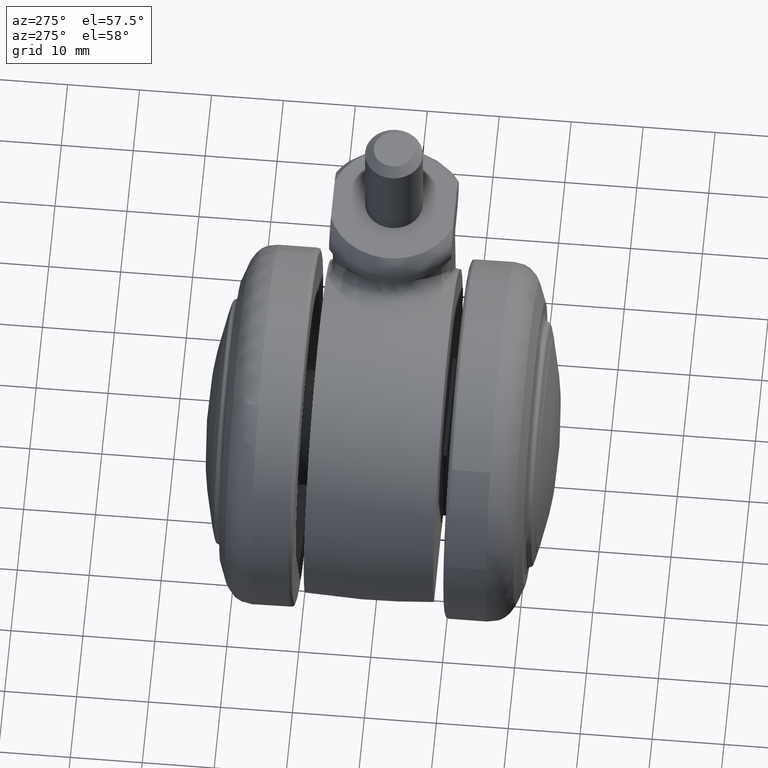
[diagram: clean part render]
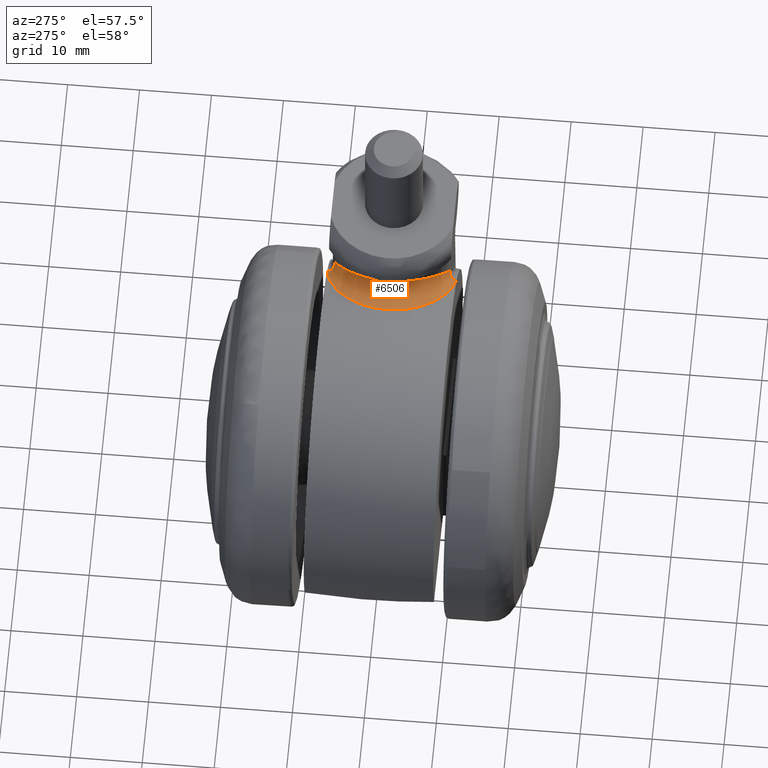
[diagram: same view with one face highlighted and labeled with its STEP entity id]
A machine part, auxiliary view. The second image highlights one B-rep face of the part: STEP entity #6506.
In plain terms, the highlighted face is a freeform B-spline surface patch.
Its self-contained STEP definition (entity closure, byte-faithful):
#5639=CARTESIAN_POINT('',(9.070010925223931,-2.937707243113865,25.444837357169000));
#5640=VERTEX_POINT('',#5639);
#5641=CARTESIAN_POINT('',(9.075658105813609,2.952950023515245,25.444858591452249));
#5642=VERTEX_POINT('',#5641);
#5643=CARTESIAN_POINT('',(9.070010925223931,-2.937707243113865,25.444837357169000));
#5644=CARTESIAN_POINT('',(9.067297548933691,-2.930449182351408,25.445429692877472));
#5645=CARTESIAN_POINT('',(9.064504033050955,-2.922949183552518,25.446039118170692));
#5646=CARTESIAN_POINT('',(9.059025846423911,-2.908184597438322,25.447233453560582));
#5647=CARTESIAN_POINT('',(9.050837648693575,-2.886032117210825,25.449017460717300));
#5648=CARTESIAN_POINT('',(9.031936200136537,-2.834303649934511,25.453127711110639));
#5649=CARTESIAN_POINT('',(9.016086367146862,-2.789897343607232,25.456561751025330));
#5650=CARTESIAN_POINT('',(8.984864400724291,-2.700993148619732,25.463317671507220));
#5651=CARTESIAN_POINT('',(8.924329952084374,-2.522817646857540,25.476354152668151));
#5652=CARTESIAN_POINT('',(8.869572298498133,-2.343532736899594,25.487984436575260));
#5653=CARTESIAN_POINT('',(8.767897337382603,-1.983460324568341,25.509417811407140));
#5654=CARTESIAN_POINT('',(8.710559200139446,-1.741410330813788,25.521274696600489));
#5655=CARTESIAN_POINT('',(8.571209447957161,-1.009022492206524,25.549815175780878));
#5656=CARTESIAN_POINT('',(8.521608021952494,-0.512497156777190,25.559569652385811));
#5657=CARTESIAN_POINT('',(8.520979438003229,0.119831154463473,25.559823524278169));
#5658=CARTESIAN_POINT('',(8.523975040243922,0.246594953768016,25.559264908260609));
#5659=CARTESIAN_POINT('',(8.536075199005417,0.499177032019263,25.556938341236979));
#5660=CARTESIAN_POINT('',(8.545174779480085,0.625223957985397,25.555171129674221));
#5661=CARTESIAN_POINT('',(8.581427929888342,1.002647347200322,25.548057297899739));
#5662=CARTESIAN_POINT('',(8.617673046854284,1.253855060551153,25.540874219380221));
#5663=CARTESIAN_POINT('',(8.712178070219020,1.749217437486715,25.521757794039370));
#5664=CARTESIAN_POINT('',(8.770440497592702,1.993905740233352,25.509823563102760));
#5665=CARTESIAN_POINT('',(8.873392724394435,2.356692301354662,25.488261074850289));
#5666=CARTESIAN_POINT('',(8.928763988691641,2.537022563928078,25.476562467512530));
#5667=CARTESIAN_POINT('',(8.989838958976588,2.715792648289672,25.463454575960132));
#5668=CARTESIAN_POINT('',(9.021316976717385,2.804920103934439,25.456662444741522));
#5669=CARTESIAN_POINT('',(9.031966006907902,2.834586402909745,25.454358238813079));
#5670=CARTESIAN_POINT('',(9.048175369273997,2.879021111358290,25.450839342742629));
#5671=CARTESIAN_POINT('',(9.056338854987796,2.901222383106519,25.449065416157978));
#5672=CARTESIAN_POINT('',(9.064589726722046,2.923399741866393,25.447269721221868));
#5673=CARTESIAN_POINT('',(9.070109635868930,2.938179357097033,25.446067748109879));
#5674=CARTESIAN_POINT('',(9.072928831967541,2.945698176374100,25.445453538185649));
#5675=CARTESIAN_POINT('',(9.075658105813609,2.952950023515245,25.444858591452249));
#5676=B_SPLINE_CURVE_WITH_KNOTS('',3,(#5643,#5644,#5645,#5646,#5647,#5648,#5649,#5650,#5651,#5652,#5653,#5654,#5655,#5656,#5657,#5658,#5659,#5660,#5661,#5662,#5663,#5664,#5665,#5666,#5667,#5668,#5669,#5670,#5671,#5672,#5673,#5674,#5675),.UNSPECIFIED.,.F.,.U.,(4,2,1,1,2,1,2,2,2,2,2,2,2,1,2,2,1,2,4),(0.0,0.003906250000000,0.007812500000000,0.015625000000000,0.031250000000000,0.062500000000000,0.125000000000001,0.250000000000001,0.500000000000001,0.562500000000001,0.625000000000001,0.750000000000000,0.875000000000000,0.937500000000000,0.968750000000000,0.984375000000000,0.992187500000000,0.996093750000000,1.0),.UNSPECIFIED.);
#5677=EDGE_CURVE('',#5640,#5642,#5676,.T.);
#6242=CARTESIAN_POINT('',(13.588231695146179,9.0,19.173156694149551));
#6243=VERTEX_POINT('',#6242);
#6244=CARTESIAN_POINT('',(14.601306427490020,8.036616070161891,20.108176495131101));
#6245=VERTEX_POINT('',#6244);
#6246=CARTESIAN_POINT('',(13.588231695146179,9.0,19.173156694149551));
#6247=CARTESIAN_POINT('',(13.946882302687898,7.793973775751146,19.051527706790850));
#6248=CARTESIAN_POINT('',(14.601306427490025,8.036616070161891,20.108176495131101));
#6256=(BOUNDED_CURVE()B_SPLINE_CURVE(2,(#6246,#6247,#6248),.UNSPECIFIED.,.F.,.U.)B_SPLINE_CURVE_WITH_KNOTS((3,3),(0.000114349194304,1.0),.UNSPECIFIED.)CURVE()GEOMETRIC_REPRESENTATION_ITEM()RATIONAL_B_SPLINE_CURVE((1.0,0.664219586636897,0.999923207560538))REPRESENTATION_ITEM(''));
#6257=EDGE_CURVE('',#6243,#6245,#6256,.T.);
#6280=CARTESIAN_POINT('',(14.680028032690776,8.063598966959177,20.025377643364266));
#6281=CARTESIAN_POINT('',(14.677868780852235,8.062818146361503,20.021932695719403));
#6282=CARTESIAN_POINT('',(14.029270484031048,7.828274448987082,18.987135765031436));
#6283=CARTESIAN_POINT('',(13.683826084633292,9.014816913660511,19.104037564570586));
#6284=CARTESIAN_POINT('',(13.682503297252412,9.019360462208105,19.104485208896286));
#6285=CARTESIAN_POINT('',(14.655379372115254,8.055650850416257,20.055205629722106));
#6286=CARTESIAN_POINT('',(14.653213269380203,8.054859758189048,20.051734996706415));
#6287=CARTESIAN_POINT('',(14.002052454169764,7.817046356618440,19.008414111126854));
#6288=CARTESIAN_POINT('',(13.651761803048112,9.011449033691454,19.127118980215368));
#6289=CARTESIAN_POINT('',(13.650421498799867,9.016019132770840,19.127573176294607));
#6290=CARTESIAN_POINT('',(14.630730965496191,8.047702815763200,20.085033308760661));
#6291=CARTESIAN_POINT('',(14.628557885136097,8.046901411083649,20.081537143906939));
#6292=CARTESIAN_POINT('',(13.974792452841635,7.805800950009608,19.029725269420751));
#6293=CARTESIAN_POINT('',(13.619697711971655,9.008081173732530,19.150200258722787));
#6294=CARTESIAN_POINT('',(13.618340080833375,9.012677842961312,19.150660869872528));
#6295=CARTESIAN_POINT('',(14.417591274175701,7.978974573863529,20.342959202362401));
#6296=CARTESIAN_POINT('',(14.415352567911171,7.978082288153195,20.339248651663560));
#6297=CARTESIAN_POINT('',(13.737292774077680,7.707826616662380,19.215396325997883));
#6298=CARTESIAN_POINT('',(13.342427283749830,8.978958003804657,19.349792879651858));
#6299=CARTESIAN_POINT('',(13.340927740159765,8.983785260099257,19.350303264822230));
#6300=CARTESIAN_POINT('',(14.225688291941930,7.910708237341734,20.570284819743346));
#6301=CARTESIAN_POINT('',(14.223404689851082,7.909730396659645,20.566372997173769));
#6302=CARTESIAN_POINT('',(13.527664710083771,7.611813846706168,19.374566698550645));
#6303=CARTESIAN_POINT('',(13.091793452629874,8.944102072898904,19.524017899644893));
#6304=CARTESIAN_POINT('',(13.090147906890110,8.949131863639281,19.524582123100899));
#6305=CARTESIAN_POINT('',(13.437290460888697,7.601987774512635,21.482187330714929));
#6306=CARTESIAN_POINT('',(13.434847038620578,7.600628584288350,21.477468082738284));
#6307=CARTESIAN_POINT('',(12.672676547613165,7.176659835974895,20.005405069121974));
#6308=CARTESIAN_POINT('',(12.058962461837913,8.760866906516249,20.216653285145163));
#6309=CARTESIAN_POINT('',(12.056699481739891,8.766708436236437,20.217432231758373));
#6310=CARTESIAN_POINT('',(12.810544767496655,7.287041133277345,22.154330967727784));
#6311=CARTESIAN_POINT('',(12.808175903682642,7.285404071109584,22.148889025875832));
#6312=CARTESIAN_POINT('',(12.056877343646875,6.766200543218318,20.422946380717971));
#6313=CARTESIAN_POINT('',(11.231126659848741,8.517209788847277,20.713004049664885));
#6314=CARTESIAN_POINT('',(11.228132066877412,8.523559841087739,20.714055946652387));
#6315=CARTESIAN_POINT('',(11.566341508313485,6.430924848051950,23.386020935686279));
#6316=CARTESIAN_POINT('',(11.564439101928482,6.428915145080318,23.379164694399432));
#6317=CARTESIAN_POINT('',(10.944495986966558,5.774006956061404,21.144899915957975));
#6318=CARTESIAN_POINT('',(9.575655776773088,7.709183547769283,21.600345020657823));
#6319=CARTESIAN_POINT('',(9.570824582763793,7.716013573280785,21.601952471728442));
#6320=CARTESIAN_POINT('',(10.935002134844078,5.874033208256386,23.953175615613347));
#6321=CARTESIAN_POINT('',(10.933498172138870,5.871934575780839,23.945618612847454));
#6322=CARTESIAN_POINT('',(10.438236876603538,5.180846003508885,21.457065560807528));
#6323=CARTESIAN_POINT('',(8.732232294878635,7.125066881931320,21.998443808520932));
#6324=CARTESIAN_POINT('',(8.726273904529794,7.131857266342995,22.000334625791169));
#6325=CARTESIAN_POINT('',(9.839504361012590,4.531512198408091,24.879575456192764));
#6326=CARTESIAN_POINT('',(9.838842314605587,4.529580976339891,24.870849917106266));
#6327=CARTESIAN_POINT('',(9.618060390477242,3.885549199072293,21.961021711422422));
#6328=CARTESIAN_POINT('',(7.253301364452385,5.605730803865386,22.631108614492330));
#6329=CARTESIAN_POINT('',(7.245145821022228,5.611663338906477,22.633419599577827));
#6330=CARTESIAN_POINT('',(9.359751156920208,3.723227375148307,25.249327723194227));
#6331=CARTESIAN_POINT('',(9.359536747152962,3.721553359913886,25.240120851479130));
#6332=CARTESIAN_POINT('',(9.287856530548016,3.161906399134167,22.162133466597332));
#6333=CARTESIAN_POINT('',(6.600565872325369,4.641975549116271,22.875482321217536));
#6334=CARTESIAN_POINT('',(6.591321019170118,4.647067302741553,22.877936393459120));
#6335=CARTESIAN_POINT('',(8.703192482914517,1.956292942282423,25.744765017846344));
#6336=CARTESIAN_POINT('',(8.703599662469504,1.955347045047983,25.734912626010740));
#6337=CARTESIAN_POINT('',(8.839942951557379,1.638615179455863,22.435858211839239));
#6338=CARTESIAN_POINT('',(5.699066836616511,2.468808357252218,23.196174971688993));
#6339=CARTESIAN_POINT('',(5.688278797876213,2.471659840671572,23.198786448983864));
#6340=CARTESIAN_POINT('',(8.522845302655142,0.993053881906620,25.874891194410960));
#6341=CARTESIAN_POINT('',(8.523432954851534,0.992574008812513,25.864864611564716));
#6342=CARTESIAN_POINT('',(8.720104237743886,0.831973473968431,22.509238743935271));
#6343=CARTESIAN_POINT('',(5.447058447747945,1.254026934186820,23.276587512977191));
#6344=CARTESIAN_POINT('',(5.435810554329424,1.255477330130549,23.279224523799144));
#6345=CARTESIAN_POINT('',(8.517027301445904,-0.943436690632673,25.877544498474691));
#6346=CARTESIAN_POINT('',(8.517620477948380,-0.942980809798136,25.867516933955283));
#6347=CARTESIAN_POINT('',(8.716147420848767,-0.790404590020889,22.511447163009553));
#6348=CARTESIAN_POINT('',(5.440305138742426,-1.191370412563964,23.278953598305698));
#6349=CARTESIAN_POINT('',(5.429048022439698,-1.192748292971223,23.281591060204406));
#6350=CARTESIAN_POINT('',(8.690476647484417,-1.905962791970774,25.750637365025515));
#6351=CARTESIAN_POINT('',(8.690895981144001,-1.905040526733231,25.740782692848946));
#6352=CARTESIAN_POINT('',(8.831320822961835,-1.596195893974748,22.440688007032136));
#6353=CARTESIAN_POINT('',(5.684326597886566,-2.405499010865640,23.201414696172503));
#6354=CARTESIAN_POINT('',(5.673518452259835,-2.408278509434089,23.204027362180213));
#6355=CARTESIAN_POINT('',(9.341330330833300,-3.687638229488257,25.258544743002684));
#6356=CARTESIAN_POINT('',(9.341133179979687,-3.685978547273943,25.249333752403981));
#6357=CARTESIAN_POINT('',(9.275209633402083,-3.131011953137183,22.169351309319868));
#6358=CARTESIAN_POINT('',(6.579380295702473,-4.597710560040093,22.883748928572100));
#6359=CARTESIAN_POINT('',(6.570107930397946,-4.602755302704131,22.886206115162445));
#6360=CARTESIAN_POINT('',(9.811882396082224,-4.490968669417210,24.894392064924602));
#6361=CARTESIAN_POINT('',(9.811245175783897,-4.489050387864461,24.885659402406262));
#6362=CARTESIAN_POINT('',(9.598655480785585,-3.849072516332167,21.972264982649758));
#6363=CARTESIAN_POINT('',(7.221761610412400,-5.555785629452283,22.644460873129454));
#6364=CARTESIAN_POINT('',(7.213567569711894,-5.561669306837848,22.646778183361086));
#6365=CARTESIAN_POINT('',(10.917389932350632,-5.857926496064389,23.963833743989976));
#6366=CARTESIAN_POINT('',(10.915899773353912,-5.855829128274926,23.956271403419972));
#6367=CARTESIAN_POINT('',(10.424998008763215,-5.164895106394839,21.465016216272097));
#6368=CARTESIAN_POINT('',(8.712393975021056,-7.105689553894152,22.008142890129623));
#6369=CARTESIAN_POINT('',(8.706414804924108,-7.112465399271227,22.010039094216008));
#6370=CARTESIAN_POINT('',(11.536185654070950,-6.406722571930318,23.405425766336112));
#6371=CARTESIAN_POINT('',(11.534304102592204,-6.404712169829976,23.398560273381115));
#6372=CARTESIAN_POINT('',(10.920700361022256,-5.749088199526255,21.159614269255879));
#6373=CARTESIAN_POINT('',(9.541943320877266,-7.680299781315170,21.618114129304917));
#6374=CARTESIAN_POINT('',(9.537080751399882,-7.687110735108011,21.619731156351708));
#6375=CARTESIAN_POINT('',(12.794440439064154,-7.278673996450767,22.166129979787279));
#6376=CARTESIAN_POINT('',(12.792079307862052,-7.277033426990816,22.160683176385671));
#6377=CARTESIAN_POINT('',(12.042859073252421,-6.756457596820277,20.432335628911357));
#6378=CARTESIAN_POINT('',(11.213442238442903,-8.507547531822533,20.723959929350322));
#6379=CARTESIAN_POINT('',(11.210435853528086,-8.513894702683006,20.725016979148258));
#6380=CARTESIAN_POINT('',(13.412662858046151,-7.590449988504640,21.501025395429611));
#6381=CARTESIAN_POINT('',(13.410229538575665,-7.589085282150946,21.496299042081180));
#6382=CARTESIAN_POINT('',(12.650604729109704,-7.163056223296279,20.020843268466280));
#6383=CARTESIAN_POINT('',(12.032097772769777,-8.747617419195242,20.234251849646348));
#6384=CARTESIAN_POINT('',(12.029818939819869,-8.753455591631841,20.235038134265455));
#6385=CARTESIAN_POINT('',(14.221787653588311,-7.909570276850053,20.568378194527131));
#6386=CARTESIAN_POINT('',(14.219512572857591,-7.908595336679550,20.564477580844553));
#6387=CARTESIAN_POINT('',(13.526223765040006,-7.611500337203744,19.375837646781751));
#6388=CARTESIAN_POINT('',(13.091061955162640,-8.939649289124024,19.525413243241626));
#6389=CARTESIAN_POINT('',(13.089419431772875,-8.944662403025779,19.525977818096631));
#6390=CARTESIAN_POINT('',(14.429163857861360,-7.983364533658984,20.322988002295538));
#6391=CARTESIAN_POINT('',(14.426937191349280,-7.982481482690713,20.319304128943237));
#6392=CARTESIAN_POINT('',(13.752707212886772,-7.715095490182467,19.203834956749922));
#6393=CARTESIAN_POINT('',(13.361691438372903,-8.977435935202260,19.337180488013693));
#6394=CARTESIAN_POINT('',(13.360206110577222,-8.982231110928648,19.337687019557730));
#6395=CARTESIAN_POINT('',(14.657110363479720,-8.056324682591688,20.046919230680160));
#6396=CARTESIAN_POINT('',(14.654955031098359,-8.055537947976598,20.043463292038009));
#6397=CARTESIAN_POINT('',(14.007021994157640,-7.819030877033685,19.004543801353048));
#6398=CARTESIAN_POINT('',(13.657954291375985,-9.007913987653701,19.123249978138805));
#6399=CARTESIAN_POINT('',(13.656618686962338,-9.012462897556260,19.123704172246075));
#6400=CARTESIAN_POINT('',(14.681945392847501,-8.064273773263235,20.016841226053629));
#6401=CARTESIAN_POINT('',(14.679797175018313,-8.063497321799769,20.013410916412774));
#6402=CARTESIAN_POINT('',(14.034508903841836,-7.830264445830179,18.983003968072897));
#6403=CARTESIAN_POINT('',(13.690231739604576,-9.011234531387546,19.099942530421320));
#6404=CARTESIAN_POINT('',(13.688913430800342,-9.015756711256101,19.100390312476897));
#6405=CARTESIAN_POINT('',(14.706780680915783,-8.072222946738535,19.986762908111782));
#6406=CARTESIAN_POINT('',(14.704639448542959,-8.071456737148029,19.983358384000343));
#6407=CARTESIAN_POINT('',(14.061953059285326,-7.841480541483646,18.961497638712508));
#6408=CARTESIAN_POINT('',(13.722509381723611,-9.014555095067875,19.076634942696131));
#6409=CARTESIAN_POINT('',(13.721208561877807,-9.019050564451371,19.077076173156179));
#6417=(BOUNDED_SURFACE()B_SPLINE_SURFACE(2,3,((#6280,#6285,#6290,#6295,#6300,#6305,#6310,#6315,#6320,#6325,#6330,#6335,#6340,#6345,#6350,#6355,#6360,#6365,#6370,#6375,#6380,#6385,#6390,#6395,#6400,#6405),(#6281,#6286,#6291,#6296,#6301,#6306,#6311,#6316,#6321,#6326,#6331,#6336,#6341,#6346,#6351,#6356,#6361,#6366,#6371,#6376,#6381,#6386,#6391,#6396,#6401,#6406),(#6282,#6287,#6292,#6297,#6302,#6307,#6312,#6317,#6322,#6327,#6332,#6337,#6342,#6347,#6352,#6357,#6362,#6367,#6372,#6377,#6382,#6387,#6392,#6397,#6402,#6407),(#6283,#6288,#6293,#6298,#6303,#6308,#6313,#6318,#6323,#6328,#6333,#6338,#6343,#6348,#6353,#6358,#6363,#6368,#6373,#6378,#6383,#6388,#6393,#6398,#6403,#6408),(#6284,#6289,#6294,#6299,#6304,#6309,#6314,#6319,#6324,#6329,#6334,#6339,#6344,#6349,#6354,#6359,#6364,#6369,#6374,#6379,#6384,#6389,#6394,#6399,#6404,#6409)),.UNSPECIFIED.,.F.,.F.,.U.)B_SPLINE_SURFACE_WITH_KNOTS((3,1,1,3),(4,2,2,2,2,2,2,2,2,2,2,2,4),(0.0,0.025173195475731,5.016950569456829,5.045942322670777),(0.0,0.157525079804145,1.362218502907139,5.015385653352269,8.668552803797326,12.321719954242459,15.974887104687500,19.628054255132710,23.281221405577771,26.934388556022821,30.587555706468031,31.885049950973709,32.043688897244600),.UNSPECIFIED.)GEOMETRIC_REPRESENTATION_ITEM()RATIONAL_B_SPLINE_SURFACE(((1.003371516260735,1.003376685208590,1.003381854156444,1.003426553301599,1.003465369518375,1.003618465722186,1.003724407124231,1.003893539920967,1.003957668067945,1.004034017426322,1.004048953917911,1.004058522667992,1.004055387262838,1.004055593321091,1.004059025028632,1.004050158100350,1.004036475918106,1.003959977027958,1.003898120381590,1.003727563663401,1.003623589270523,1.003466745221340,1.003424755658201,1.003376787460074,1.003371561547737,1.003366335635400),(1.001685758130368,1.001688342604295,1.001690927078222,1.001713276650800,1.001732684759188,1.001809232861093,1.001862203562116,1.001946769960483,1.001978834033972,1.002017008713161,1.002024476958955,1.002029261333996,1.002027693631419,1.002027796660545,1.002029512514316,1.002025079050175,1.002018237959053,1.001979988513979,1.001949060190795,1.001863781831700,1.001811794635262,1.001733372610670,1.001712377829101,1.001688393730037,1.001685780773868,1.001683167817700),(0.665718668840175,0.665206174568812,0.664693680297449,0.660261819796555,0.656413243781724,0.641233959789725,0.630730011369514,0.613960720622238,0.607602500557754,0.600032563716972,0.598551630538836,0.597602901757103,0.597913772987519,0.597893342587208,0.597553093371060,0.598432237459360,0.599788807542344,0.607373570258388,0.613506574073328,0.630417044729624,0.640725966819808,0.656276844671464,0.660440053736809,0.665196036470831,0.665714178694486,0.666232320918142),(1.001941473172969,1.001944449689413,1.001947426205857,1.001973166016809,1.001995518168695,1.002083677960787,1.002144683862605,1.002242078257926,1.002279006176216,1.002322971626654,1.002331572741249,1.002337082864928,1.002335277355323,1.002335396013084,1.002337372147147,1.002332266164541,1.002324387338600,1.002280335780933,1.002244715896523,1.002146501542142,1.002086628334114,1.001996310361345,1.001972130851571,1.001944508570491,1.001941499251294,1.001938489932097),(1.003882946345937,1.003888899378825,1.003894852411714,1.003946332033618,1.003991036337391,1.004167355921575,1.004289367725209,1.004484156515852,1.004558012352433,1.004645943253309,1.004663145482499,1.004674165729856,1.004670554710647,1.004670792026168,1.004674744294295,1.004664532329081,1.004648774677200,1.004560671561867,1.004489431793046,1.004293003084284,1.004173256668229,1.003992620722690,1.003944261703143,1.003889017140982,1.003882998502589,1.003876979864195)))REPRESENTATION_ITEM('')SURFACE());
#6418=CARTESIAN_POINT('',(14.628022690233299,-8.045893878071739,20.069856902502650));
#6419=VERTEX_POINT('',#6418);
#6420=CARTESIAN_POINT('',(9.070010925223931,-2.937707243113865,25.444837357169000));
#6421=CARTESIAN_POINT('',(9.137854779852775,-3.113466288722163,25.393151683502101));
#6422=CARTESIAN_POINT('',(9.437314180805366,-3.816283612428233,25.163601675117089));
#6423=CARTESIAN_POINT('',(10.122052192541720,-4.949713833514489,24.624292707118361));
#6424=CARTESIAN_POINT('',(11.033351123513730,-5.947166269293470,23.841561182405378));
#6425=CARTESIAN_POINT('',(11.838983254773501,-6.620199027330384,23.089694607089051));
#6426=CARTESIAN_POINT('',(12.493416624146450,-7.073426694443958,22.443864617300481));
#6427=CARTESIAN_POINT('',(13.182630455993470,-7.464366147926037,21.723748380997179));
#6428=CARTESIAN_POINT('',(13.901891359862519,-7.797796438682016,20.931473576218949));
#6429=CARTESIAN_POINT('',(14.382302813897820,-7.961938717928929,20.361424465640361));
#6430=CARTESIAN_POINT('',(14.628022690233299,-8.045893878071739,20.069856902502650));
#6431=B_SPLINE_CURVE_WITH_KNOTS('',3,(#6420,#6421,#6422,#6423,#6424,#6425,#6426,#6427,#6428,#6429,#6430),.UNSPECIFIED.,.F.,.U.,(4,1,1,1,1,1,1,1,4),(0.619286242368023,0.642433091575388,0.713723201895343,0.787697378712744,0.826503465412993,0.866996355129486,0.909325565714501,0.953622024220544,1.0),.UNSPECIFIED.);
#6432=EDGE_CURVE('',#5640,#6419,#6431,.T.);
#6433=ORIENTED_EDGE('',*,*,#6432,.F.);
#6434=ORIENTED_EDGE('',*,*,#5677,.T.);
#6435=CARTESIAN_POINT('',(14.601306427490020,8.036616070161891,20.108176495131101));
#6436=CARTESIAN_POINT('',(14.473772636491390,7.994186218019736,20.260639257984590));
#6437=CARTESIAN_POINT('',(14.221798172967780,7.910355534906422,20.561867022271450));
#6438=CARTESIAN_POINT('',(13.843674151889340,7.761427312865465,20.996753627676430));
#6439=CARTESIAN_POINT('',(13.472379446720470,7.597355012658925,21.412018137519269));
#6440=CARTESIAN_POINT('',(13.108340904053840,7.416591011128974,21.806954662089080));
#6441=CARTESIAN_POINT('',(12.752471044244270,7.219709461237317,22.181803323151691));
#6442=CARTESIAN_POINT('',(12.405559289000109,7.006786097613256,22.536568680209971));
#6443=CARTESIAN_POINT('',(12.068435317601550,6.778085720653270,22.871284696655771));
#6444=CARTESIAN_POINT('',(11.741893920186330,6.533850725352803,23.186089265269722));
#6445=CARTESIAN_POINT('',(11.119426531318640,6.021434094338709,23.768108714070038));
#6446=CARTESIAN_POINT('',(10.249857235354810,5.123386544211281,24.525004583107901));
#6447=CARTESIAN_POINT('',(9.493084373967772,3.930535937429677,25.125540148609911));
#6448=CARTESIAN_POINT('',(9.159624696235994,3.169157468558015,25.381073451788680));
#6449=CARTESIAN_POINT('',(9.075658105813609,2.952950023515245,25.444858591452249));
#6450=B_SPLINE_CURVE_WITH_KNOTS('',3,(#6435,#6436,#6437,#6438,#6439,#6440,#6441,#6442,#6443,#6444,#6445,#6446,#6447,#6448,#6449),.UNSPECIFIED.,.F.,.U.,(4,1,1,1,1,1,1,1,1,1,1,1,4),(0.000000133971701,0.024151095842343,0.047716314890947,0.070709878821745,0.093147096353674,0.115044443081327,0.136419642999478,0.157291750319061,0.177681229735232,0.197610032813696,0.275454087761062,0.349838501214315,0.378333787725815),.UNSPECIFIED.);
#6451=EDGE_CURVE('',#6245,#5642,#6450,.T.);
#6452=ORIENTED_EDGE('',*,*,#6451,.F.);
#6453=ORIENTED_EDGE('',*,*,#6257,.F.);
#6454=CARTESIAN_POINT('',(13.626917438481060,-8.999999991011920,19.145929833168950));
#6455=VERTEX_POINT('',#6454);
#6456=CARTESIAN_POINT('',(13.626917438481060,-8.999999991011920,19.145929833168950));
#6457=CARTESIAN_POINT('',(13.485970573153541,-8.983746999216494,19.246689409881739));
#6458=CARTESIAN_POINT('',(13.207181752543651,-8.951599051807376,19.445988936633420));
#6459=CARTESIAN_POINT('',(12.788595045147259,-8.881347831777774,19.730417427909781));
#6460=CARTESIAN_POINT('',(12.376595833222650,-8.795469631230754,20.000481243639321));
#6461=CARTESIAN_POINT('',(11.971330356269910,-8.692439253105206,20.256010351060311));
#6462=CARTESIAN_POINT('',(11.573418144091050,-8.572641669069935,20.497800332550280));
#6463=CARTESIAN_POINT('',(11.183311035852711,-8.435965015010472,20.726378111491570));
#6464=CARTESIAN_POINT('',(10.801462589099950,-8.282426195549217,20.942320351350329));
#6465=CARTESIAN_POINT('',(10.428286878670001,-8.112008490127010,21.146168542057492));
#6466=CARTESIAN_POINT('',(10.064171471703659,-7.924704019774821,21.338449474999059));
#6467=CARTESIAN_POINT('',(9.709477880486487,-7.720503992484755,21.519667890574912));
#6468=CARTESIAN_POINT('',(9.364538459949765,-7.499398111555482,21.690308611907611));
#6469=CARTESIAN_POINT('',(9.029678438152853,-7.261388009723592,21.850828939796070));
#6470=CARTESIAN_POINT('',(8.705140862795288,-7.006435965222605,22.001681205582230));
#6471=CARTESIAN_POINT('',(8.052779241007448,-6.441375706537425,22.295968324311090));
#6472=CARTESIAN_POINT('',(7.148738199464537,-5.441129982913077,22.670323636990840));
#6473=CARTESIAN_POINT('',(6.210402163623721,-3.817814088370795,23.019787655634332));
#6474=CARTESIAN_POINT('',(5.593906407246323,-1.984031129060857,23.229612903319211));
#6475=CARTESIAN_POINT('',(5.387940715180545,-0.016547597287704,23.297312674020571));
#6476=CARTESIAN_POINT('',(5.584071074696168,1.951561077320783,23.232537222142401));
#6477=CARTESIAN_POINT('',(6.192399556534373,3.786848496872993,23.025684629214179));
#6478=CARTESIAN_POINT('',(7.121721865453101,5.412673166378905,22.680171332930321));
#6479=CARTESIAN_POINT('',(8.115407867749488,6.522333767458592,22.269907178274700));
#6480=CARTESIAN_POINT('',(8.991756815394941,7.250803424221108,21.870500244365441));
#6481=CARTESIAN_POINT('',(9.674892421136546,7.716126812242630,21.539261217103061));
#6482=CARTESIAN_POINT('',(10.396477830621119,8.112480577359474,21.165871457682471));
#6483=CARTESIAN_POINT('',(11.153788626256150,8.440514302066386,20.746671406847781));
#6484=CARTESIAN_POINT('',(11.943143209463640,8.698862084756364,20.276773847888212));
#6485=CARTESIAN_POINT('',(12.762340361047819,8.893485909384596,19.754648746457079));
#6486=CARTESIAN_POINT('',(13.309119228960860,8.964003241966923,19.369673686259539));
#6487=CARTESIAN_POINT('',(13.588231695146179,9.0,19.173156694149551));
#6488=B_SPLINE_CURVE_WITH_KNOTS('',3,(#6456,#6457,#6458,#6459,#6460,#6461,#6462,#6463,#6464,#6465,#6466,#6467,#6468,#6469,#6470,#6471,#6472,#6473,#6474,#6475,#6476,#6477,#6478,#6479,#6480,#6481,#6482,#6483,#6484,#6485,#6486,#6487),.UNSPECIFIED.,.F.,.U.,(4,1,1,1,1,1,1,1,1,1,1,1,1,1,1,1,1,1,1,1,1,1,1,1,1,1,1,1,1,4),(0.0,0.018384239686145,0.036363494058558,0.053962390012473,0.071206998602815,0.088124850623194,0.104744931471463,0.121097651415106,0.137214787784140,0.153129396404512,0.168875690763016,0.184488888937885,0.200005030148807,0.215460764725340,0.230893123163614,0.296339252874518,0.361960628748432,0.430954999546242,0.500198054534452,0.569384394208857,0.638317394092071,0.703908737427614,0.769117674465491,0.800130197477701,0.831339626800998,0.863036717376356,0.895500426439654,0.928992325793787,0.963752938840840,1.000000000000000),.UNSPECIFIED.);
#6489=EDGE_CURVE('',#6455,#6243,#6488,.T.);
#6490=ORIENTED_EDGE('',*,*,#6489,.F.);
#6491=CARTESIAN_POINT('',(13.626917438481060,-8.999999991011920,19.145929833168950));
#6492=CARTESIAN_POINT('',(13.662381579544279,-8.866413655722251,19.135194266667241));
#6493=CARTESIAN_POINT('',(13.716571991449291,-8.722986804376067,19.145228857436269));
#6494=CARTESIAN_POINT('',(13.863067889078620,-8.452726243439727,19.223525293618930));
#6495=CARTESIAN_POINT('',(13.955409055121359,-8.327123719523257,19.292371165313408));
#6496=CARTESIAN_POINT('',(14.156039211171249,-8.135980886030470,19.477563890820051));
#6497=CARTESIAN_POINT('',(14.263400292481551,-8.071323677998832,19.593053829153519));
#6498=CARTESIAN_POINT('',(14.461983006066390,-8.012741396274622,19.833248233234329));
#6499=CARTESIAN_POINT('',(14.552710144146999,-8.018000116824011,19.956935519285469));
#6500=CARTESIAN_POINT('',(14.628022690233299,-8.045893878071739,20.069856902502650));
#6501=B_SPLINE_CURVE_WITH_KNOTS('',3,(#6491,#6492,#6493,#6494,#6495,#6496,#6497,#6498,#6499,#6500),.UNSPECIFIED.,.F.,.U.,(4,2,2,2,4),(0.000306268512661,0.250210700484648,0.500210700484648,0.750210700484648,0.999904431971987),.UNSPECIFIED.);
#6502=EDGE_CURVE('',#6455,#6419,#6501,.T.);
#6503=ORIENTED_EDGE('',*,*,#6502,.T.);
#6504=EDGE_LOOP('',(#6433,#6434,#6452,#6453,#6490,#6503));
#6505=FACE_OUTER_BOUND('',#6504,.T.);
#6506=ADVANCED_FACE('',(#6505),#6417,.T.);